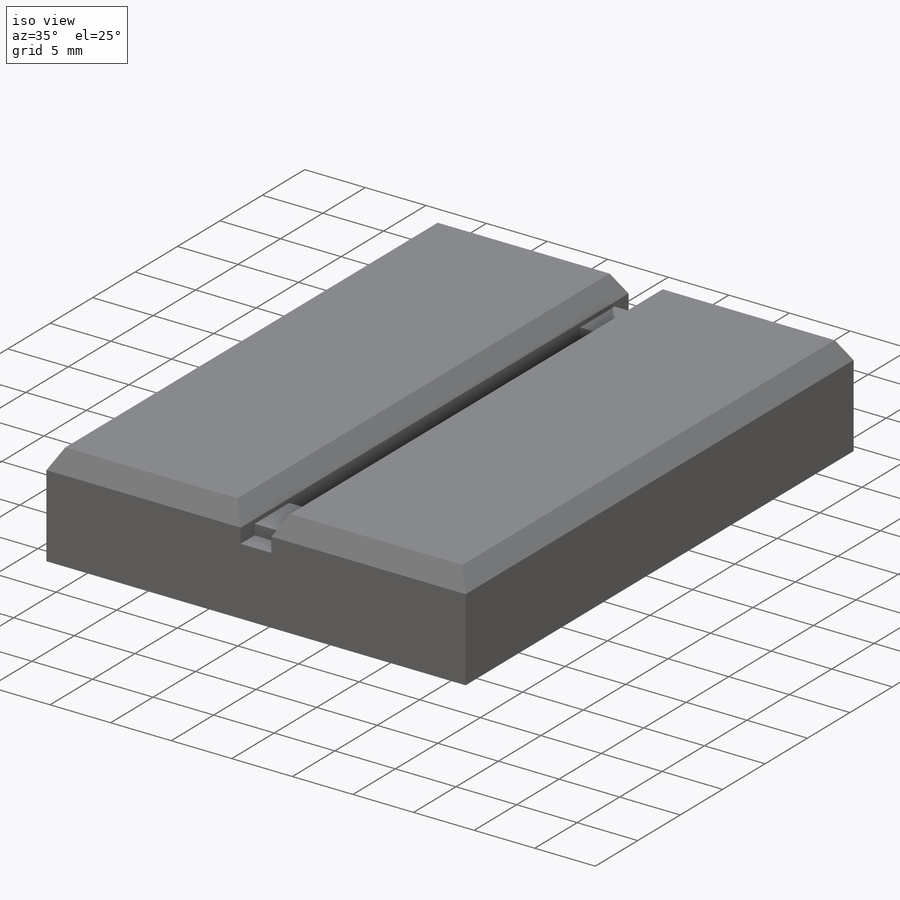
[diagram: iso view]
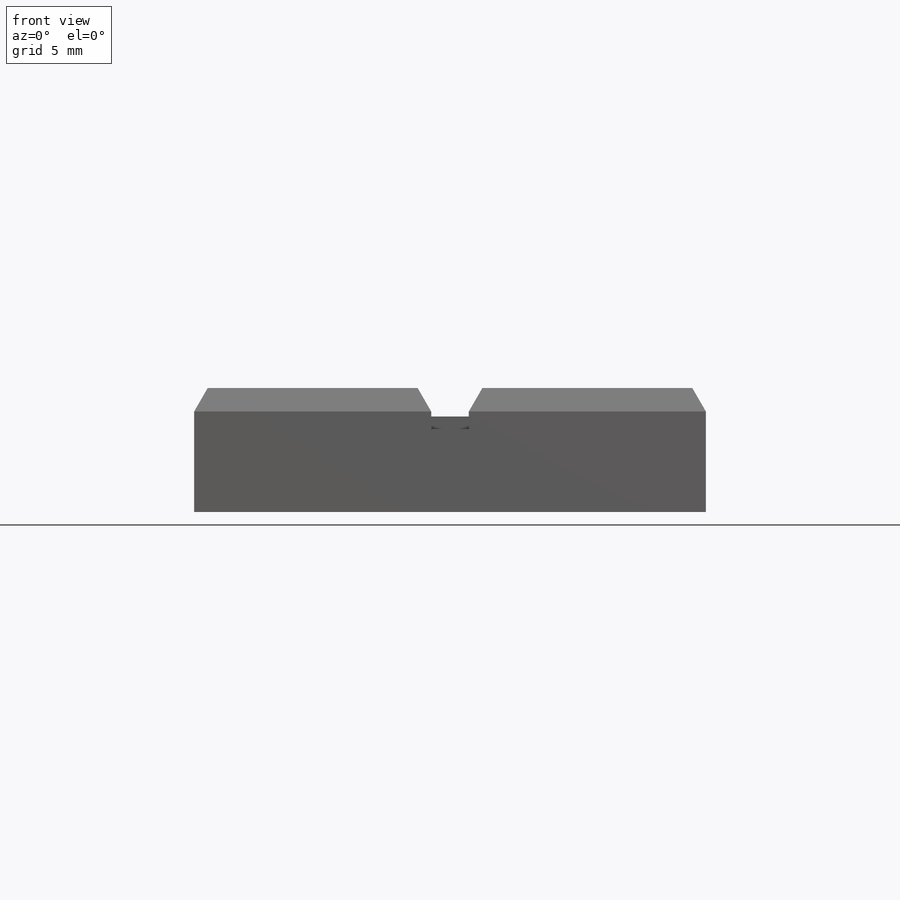
[diagram: front view]
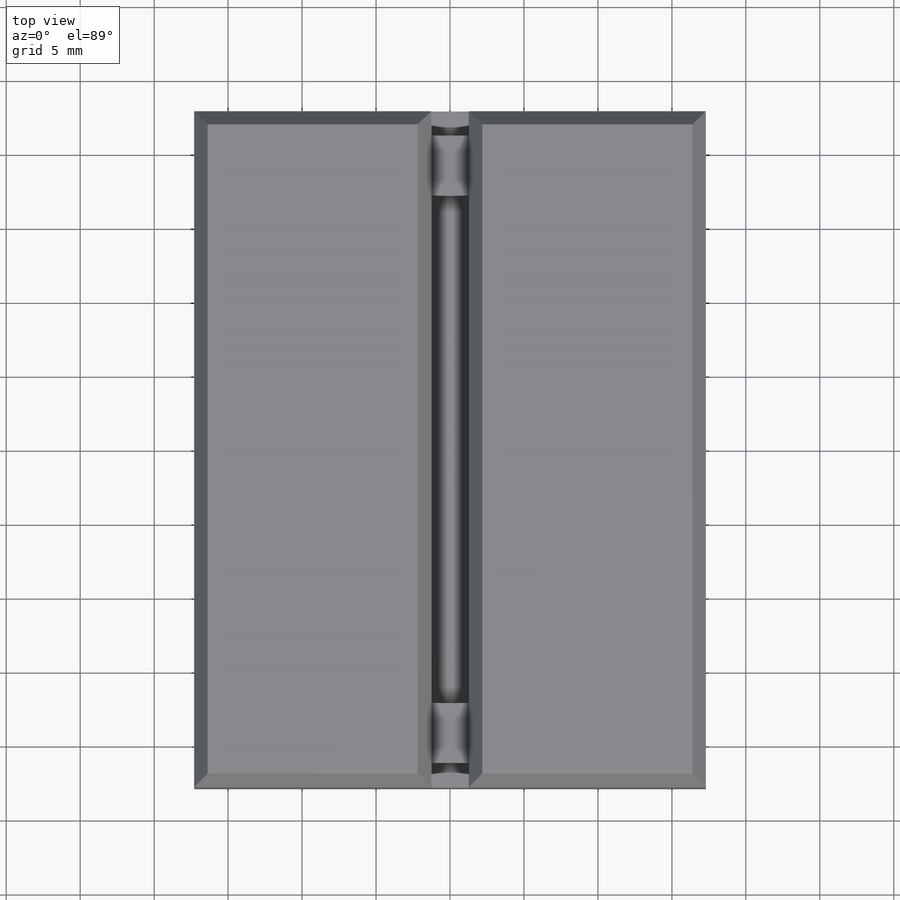
[diagram: top view]
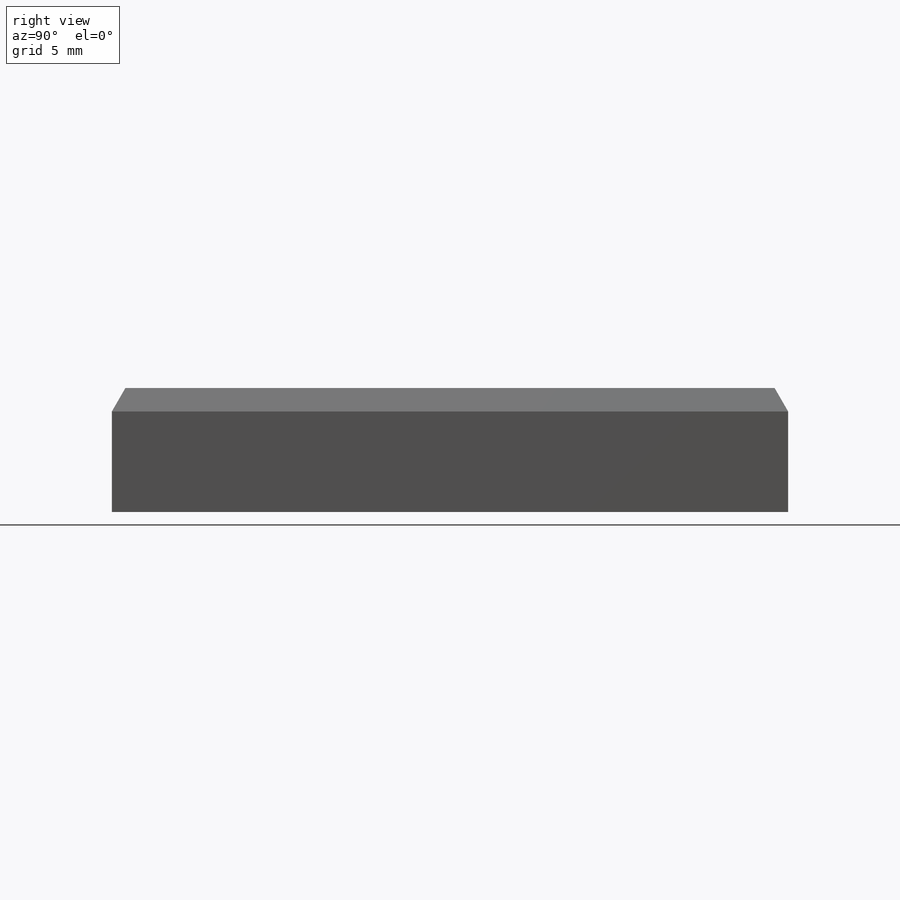
[diagram: right view]
SOLIDWORKS PART (.sldprt)
format: sldprt  version: not decoded by parser v0  size: 172,032 bytes
history: native  units: mm
features: sketch x3, extrude x2, material x1, chamfer x1, mirror x1 (+12 scaffold rows collapsed)
feature tree (20):
  scaffold x12  (default folders/planes/origin — collapsed)
  material  "Material <not specified>"
  sketch  "Sketch1"  dims[c1.D1=34.5948mm c1.D2=8.382mm c1.D3=2.54mm c1.D4=1.27mm c2.D4=90.0deg c3.D4=2.794mm]
  extrude  "Boss-Extrude1"  Depth=45.72mm
  chamfer  "Chamfer1"  Distance=1.5875mm Angle=30deg
  sketch  "Sketch2"  dims[D1=1.9304mm]
  extrude  "Boss-Extrude2"  Depth=4.064mm
  mirror  "Mirror1"
  sketch  "Sketch3"  dims[c1.D1=1.5875mm c1.D2=1.5875mm c1.D3=0.635mm c2.D1=1.5875mm]
decode coverage: 6 of 7 modeling features carry decoded parameters
note: suppression state not decoded; provenance and decode notes live in map.json
